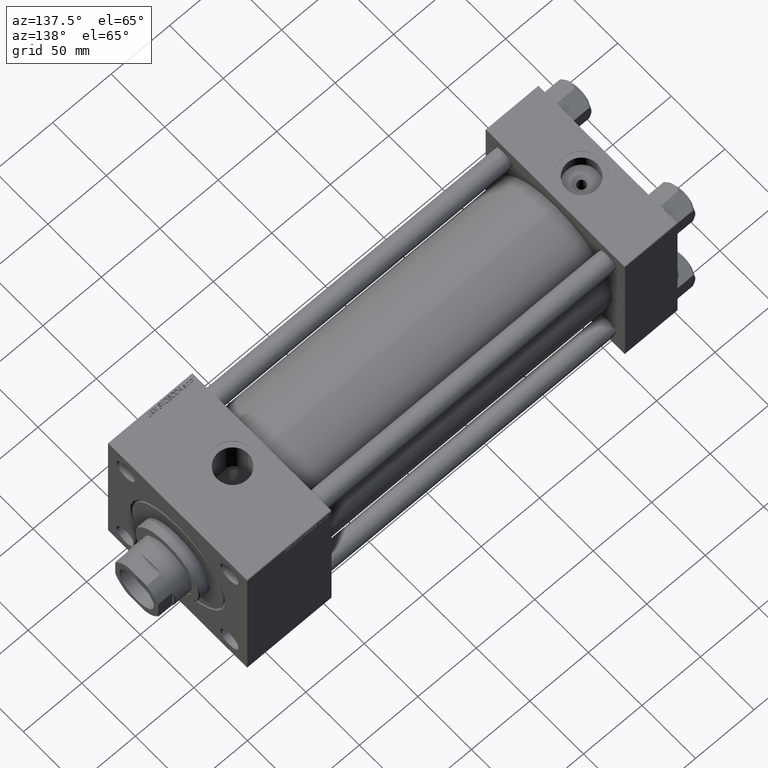
[diagram: clean part render]
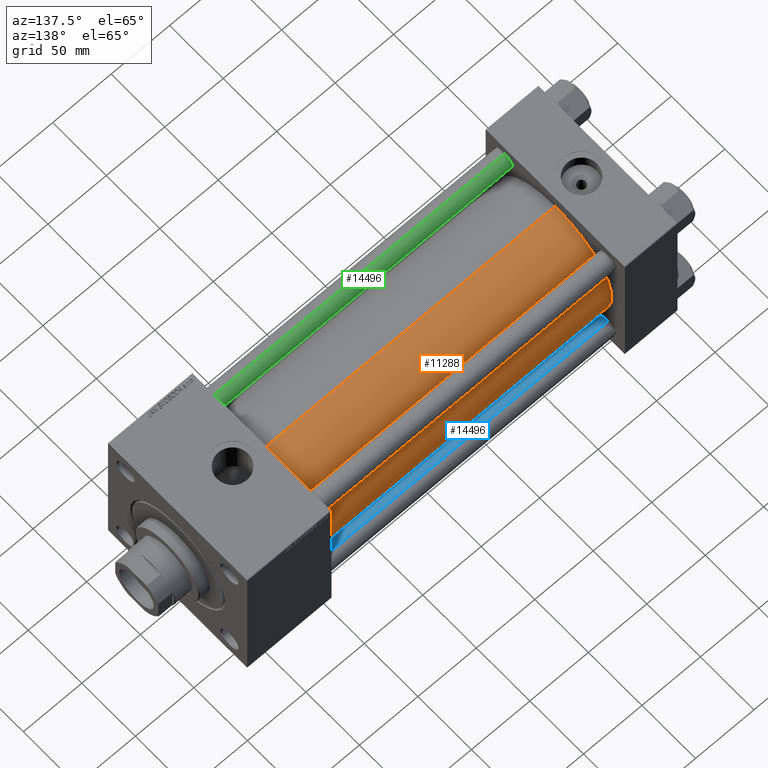
[diagram: same view with three faces highlighted in distinct colors, each labeled with its STEP entity id]
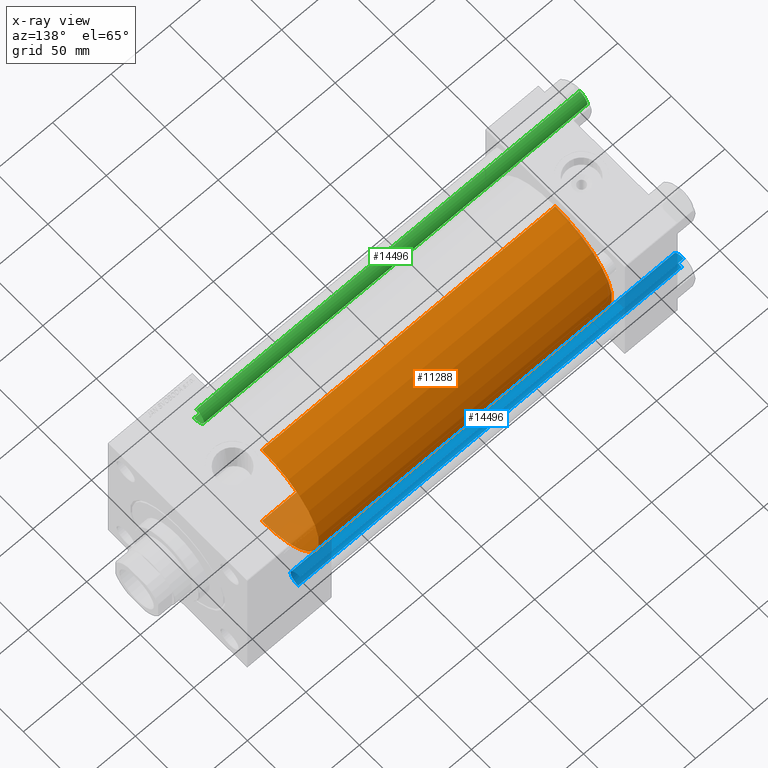
[diagram: x-ray of the same camera — body ghosted, the three highlighted faces saturated]
A machine part, auxiliary view with three faces highlighted in distinct colors.
The next image is the same camera in x-ray (body ghosted, the three faces saturated) — at least one of them is partly hidden behind the body in this view.
Their STEP definitions:

[orange] entity #11288 — the highlighted cylindrical surface (partial cylindrical patch) has radius 53 mm, axis along (-1, -0, -0).
#1529 = CIRCLE ( 'NONE', #45708, 53.00000000000000711 ) ;
#1586 = ORIENTED_EDGE ( 'NONE', *, *, #13727, .F. ) ;
#2878 = DIRECTION ( 'NONE',  ( 0.000000000000000000, 0.000000000000000000, 1.000000000000000000 ) ) ;
#3187 = ORIENTED_EDGE ( 'NONE', *, *, #44488, .T. ) ;
#5839 = CARTESIAN_POINT ( 'NONE',  ( 44.99999999999998579, -2.602085213965210642E-15, 0.000000000000000000 ) ) ;
#5963 = CARTESIAN_POINT ( 'NONE',  ( 296.0000000000000000, -2.602085213965210642E-15, 0.000000000000000000 ) ) ;
#6110 = DIRECTION ( 'NONE',  ( -1.000000000000000000, -0.000000000000000000, -0.000000000000000000 ) ) ;
#6143 = VERTEX_POINT ( 'NONE', #42360 ) ;
#8183 = AXIS2_PLACEMENT_3D ( 'NONE', #5839, #16865, #32497 ) ;
#9088 = CARTESIAN_POINT ( 'NONE',  ( 296.0000000000000000, -2.602085213965210642E-15, 0.000000000000000000 ) ) ;
#11288 = ADVANCED_FACE ( 'NONE', ( #14667 ), #45412, .T. ) ;
#13727 = EDGE_CURVE ( 'NONE', #6143, #29802, #29171, .T. ) ;
#14667 = FACE_OUTER_BOUND ( 'NONE', #21549, .T. ) ;
#14841 = EDGE_CURVE ( 'NONE', #36565, #15045, #33787, .T. ) ;
#15045 = VERTEX_POINT ( 'NONE', #22445 ) ;
#16865 = DIRECTION ( 'NONE',  ( 1.000000000000000000, -0.000000000000000000, 0.000000000000000000 ) ) ;
#17195 = CIRCLE ( 'NONE', #8183, 53.00000000000000711 ) ;
#19900 = VECTOR ( 'NONE', #29945, 1000.000000000000000 ) ;
#21549 = EDGE_LOOP ( 'NONE', ( #27391, #48514, #3187, #1586 ) ) ;
#22445 = CARTESIAN_POINT ( 'NONE',  ( 44.99999999999998579, 3.888542821515762466E-15, -53.00000000000000711 ) ) ;
#24906 = AXIS2_PLACEMENT_3D ( 'NONE', #5963, #48994, #2878 ) ;
#26587 = CARTESIAN_POINT ( 'NONE',  ( 296.0000000000000000, 3.888542821515762466E-15, -53.00000000000000711 ) ) ;
#27391 = ORIENTED_EDGE ( 'NONE', *, *, #32013, .F. ) ;
#29171 = LINE ( 'NONE', #48640, #44604 ) ;
#29802 = VERTEX_POINT ( 'NONE', #30726 ) ;
#29945 = DIRECTION ( 'NONE',  ( -1.000000000000000000, -0.000000000000000000, -0.000000000000000000 ) ) ;
#30726 = CARTESIAN_POINT ( 'NONE',  ( 44.99999999999998579, -2.602085213965210642E-15, 53.00000000000000711 ) ) ;
#32013 = EDGE_CURVE ( 'NONE', #36565, #6143, #1529, .T. ) ;
#32497 = DIRECTION ( 'NONE',  ( 0.000000000000000000, 0.000000000000000000, 1.000000000000000000 ) ) ;
#33787 = LINE ( 'NONE', #26587, #19900 ) ;
#35268 = CARTESIAN_POINT ( 'NONE',  ( 296.0000000000000000, 3.888542821515762466E-15, -53.00000000000000711 ) ) ;
#36565 = VERTEX_POINT ( 'NONE', #35268 ) ;
#40343 = DIRECTION ( 'NONE',  ( 1.000000000000000000, 0.000000000000000000, 0.000000000000000000 ) ) ;
#42360 = CARTESIAN_POINT ( 'NONE',  ( 296.0000000000000000, -2.602085213965210642E-15, 53.00000000000000711 ) ) ;
#44488 = EDGE_CURVE ( 'NONE', #15045, #29802, #17195, .T. ) ;
#44604 = VECTOR ( 'NONE', #6110, 1000.000000000000000 ) ;
#45412 = CYLINDRICAL_SURFACE ( 'NONE', #24906, 53.00000000000000711 ) ;
#45708 = AXIS2_PLACEMENT_3D ( 'NONE', #9088, #40343, #47518 ) ;
#47518 = DIRECTION ( 'NONE',  ( 0.000000000000000000, 0.000000000000000000, -1.000000000000000000 ) ) ;
#48514 = ORIENTED_EDGE ( 'NONE', *, *, #14841, .T. ) ;
#48640 = CARTESIAN_POINT ( 'NONE',  ( 296.0000000000000000, -2.602085213965210642E-15, 53.00000000000000711 ) ) ;
#48994 = DIRECTION ( 'NONE',  ( -1.000000000000000000, -0.000000000000000000, -0.000000000000000000 ) ) ;

[blue] entity #14496 — the highlighted cylindrical surface (edge-blend (fillet) strip) has radius 8 mm, axis along (1, -0, 0).
#5087 = DIRECTION ( 'NONE',  ( 1.000000000000000000, 0.000000000000000000, 0.000000000000000000 ) ) ;
#5956 = LINE ( 'NONE', #14160, #36041 ) ;
#7304 = AXIS2_PLACEMENT_3D ( 'NONE', #35829, #12779, #5087 ) ;
#7444 = VECTOR ( 'NONE', #16368, 1000.000000000000000 ) ;
#8930 = CARTESIAN_POINT ( 'NONE',  ( -8.000000000000000000, 0.000000000000000000, 329.0000000000000000 ) ) ;
#9748 = ORIENTED_EDGE ( 'NONE', *, *, #34423, .T. ) ;
#10873 = AXIS2_PLACEMENT_3D ( 'NONE', #14693, #42333, #34899 ) ;
#11016 = ORIENTED_EDGE ( 'NONE', *, *, #30398, .T. ) ;
#11764 = LINE ( 'NONE', #8930, #7444 ) ;
#12581 = DIRECTION ( 'NONE',  ( -0.000000000000000000, -0.000000000000000000, 1.000000000000000000 ) ) ;
#12779 = DIRECTION ( 'NONE',  ( 0.000000000000000000, 0.000000000000000000, -1.000000000000000000 ) ) ;
#14160 = CARTESIAN_POINT ( 'NONE',  ( 8.000000000000000000, 9.797174393178825657E-16, 329.0000000000000000 ) ) ;
#14496 = ADVANCED_FACE ( 'NONE', ( #33398 ), #18531, .T. ) ;
#14693 = CARTESIAN_POINT ( 'NONE',  ( 0.000000000000000000, 0.000000000000000000, 329.0000000000000000 ) ) ;
#14786 = ORIENTED_EDGE ( 'NONE', *, *, #42371, .T. ) ;
#16368 = DIRECTION ( 'NONE',  ( -0.000000000000000000, -0.000000000000000000, -1.000000000000000000 ) ) ;
#18531 = CYLINDRICAL_SURFACE ( 'NONE', #10873, 8.000000000000000000 ) ;
#20134 = EDGE_LOOP ( 'NONE', ( #28372, #9748, #14786, #11016 ) ) ;
#20258 = CIRCLE ( 'NONE', #36611, 8.000000000000000000 ) ;
#21722 = CARTESIAN_POINT ( 'NONE',  ( 8.000000000000000000, 9.797174393178825657E-16, 0.4999999999998894218 ) ) ;
#24490 = CIRCLE ( 'NONE', #7304, 8.000000000000000000 ) ;
#28372 = ORIENTED_EDGE ( 'NONE', *, *, #41280, .F. ) ;
#28922 = CARTESIAN_POINT ( 'NONE',  ( 8.000000000000000000, 9.797174393178825657E-16, 328.5000000000000000 ) ) ;
#30398 = EDGE_CURVE ( 'NONE', #49402, #34552, #20258, .T. ) ;
#31513 = VERTEX_POINT ( 'NONE', #28922 ) ;
#32687 = CARTESIAN_POINT ( 'NONE',  ( -8.000000000000000000, 0.000000000000000000, 328.5000000000000000 ) ) ;
#33398 = FACE_OUTER_BOUND ( 'NONE', #20134, .T. ) ;
#34423 = EDGE_CURVE ( 'NONE', #31513, #45241, #24490, .T. ) ;
#34552 = VERTEX_POINT ( 'NONE', #21722 ) ;
#34899 = DIRECTION ( 'NONE',  ( -1.000000000000000000, 0.000000000000000000, 0.000000000000000000 ) ) ;
#35829 = CARTESIAN_POINT ( 'NONE',  ( 0.000000000000000000, 0.000000000000000000, 328.5000000000000000 ) ) ;
#36041 = VECTOR ( 'NONE', #36959, 1000.000000000000000 ) ;
#36611 = AXIS2_PLACEMENT_3D ( 'NONE', #47678, #12581, #43823 ) ;
#36959 = DIRECTION ( 'NONE',  ( -0.000000000000000000, -0.000000000000000000, -1.000000000000000000 ) ) ;
#38124 = CARTESIAN_POINT ( 'NONE',  ( -8.000000000000000000, 0.000000000000000000, 0.4999999999998894218 ) ) ;
#41280 = EDGE_CURVE ( 'NONE', #31513, #34552, #5956, .T. ) ;
#42333 = DIRECTION ( 'NONE',  ( -0.000000000000000000, -0.000000000000000000, -1.000000000000000000 ) ) ;
#42371 = EDGE_CURVE ( 'NONE', #45241, #49402, #11764, .T. ) ;
#43823 = DIRECTION ( 'NONE',  ( 1.000000000000000000, 0.000000000000000000, 0.000000000000000000 ) ) ;
#45241 = VERTEX_POINT ( 'NONE', #32687 ) ;
#47678 = CARTESIAN_POINT ( 'NONE',  ( 0.000000000000000000, 0.000000000000000000, 0.4999999999998894218 ) ) ;
#49402 = VERTEX_POINT ( 'NONE', #38124 ) ;

[green] entity #14496 — the highlighted cylindrical surface (edge-blend (fillet) strip) has radius 8 mm, axis along (1, 0, -0).
#5087 = DIRECTION ( 'NONE',  ( 1.000000000000000000, 0.000000000000000000, 0.000000000000000000 ) ) ;
#5956 = LINE ( 'NONE', #14160, #36041 ) ;
#7304 = AXIS2_PLACEMENT_3D ( 'NONE', #35829, #12779, #5087 ) ;
#7444 = VECTOR ( 'NONE', #16368, 1000.000000000000000 ) ;
#8930 = CARTESIAN_POINT ( 'NONE',  ( -8.000000000000000000, 0.000000000000000000, 329.0000000000000000 ) ) ;
#9748 = ORIENTED_EDGE ( 'NONE', *, *, #34423, .T. ) ;
#10873 = AXIS2_PLACEMENT_3D ( 'NONE', #14693, #42333, #34899 ) ;
#11016 = ORIENTED_EDGE ( 'NONE', *, *, #30398, .T. ) ;
#11764 = LINE ( 'NONE', #8930, #7444 ) ;
#12581 = DIRECTION ( 'NONE',  ( -0.000000000000000000, -0.000000000000000000, 1.000000000000000000 ) ) ;
#12779 = DIRECTION ( 'NONE',  ( 0.000000000000000000, 0.000000000000000000, -1.000000000000000000 ) ) ;
#14160 = CARTESIAN_POINT ( 'NONE',  ( 8.000000000000000000, 9.797174393178825657E-16, 329.0000000000000000 ) ) ;
#14496 = ADVANCED_FACE ( 'NONE', ( #33398 ), #18531, .T. ) ;
#14693 = CARTESIAN_POINT ( 'NONE',  ( 0.000000000000000000, 0.000000000000000000, 329.0000000000000000 ) ) ;
#14786 = ORIENTED_EDGE ( 'NONE', *, *, #42371, .T. ) ;
#16368 = DIRECTION ( 'NONE',  ( -0.000000000000000000, -0.000000000000000000, -1.000000000000000000 ) ) ;
#18531 = CYLINDRICAL_SURFACE ( 'NONE', #10873, 8.000000000000000000 ) ;
#20134 = EDGE_LOOP ( 'NONE', ( #28372, #9748, #14786, #11016 ) ) ;
#20258 = CIRCLE ( 'NONE', #36611, 8.000000000000000000 ) ;
#21722 = CARTESIAN_POINT ( 'NONE',  ( 8.000000000000000000, 9.797174393178825657E-16, 0.4999999999998894218 ) ) ;
#24490 = CIRCLE ( 'NONE', #7304, 8.000000000000000000 ) ;
#28372 = ORIENTED_EDGE ( 'NONE', *, *, #41280, .F. ) ;
#28922 = CARTESIAN_POINT ( 'NONE',  ( 8.000000000000000000, 9.797174393178825657E-16, 328.5000000000000000 ) ) ;
#30398 = EDGE_CURVE ( 'NONE', #49402, #34552, #20258, .T. ) ;
#31513 = VERTEX_POINT ( 'NONE', #28922 ) ;
#32687 = CARTESIAN_POINT ( 'NONE',  ( -8.000000000000000000, 0.000000000000000000, 328.5000000000000000 ) ) ;
#33398 = FACE_OUTER_BOUND ( 'NONE', #20134, .T. ) ;
#34423 = EDGE_CURVE ( 'NONE', #31513, #45241, #24490, .T. ) ;
#34552 = VERTEX_POINT ( 'NONE', #21722 ) ;
#34899 = DIRECTION ( 'NONE',  ( -1.000000000000000000, 0.000000000000000000, 0.000000000000000000 ) ) ;
#35829 = CARTESIAN_POINT ( 'NONE',  ( 0.000000000000000000, 0.000000000000000000, 328.5000000000000000 ) ) ;
#36041 = VECTOR ( 'NONE', #36959, 1000.000000000000000 ) ;
#36611 = AXIS2_PLACEMENT_3D ( 'NONE', #47678, #12581, #43823 ) ;
#36959 = DIRECTION ( 'NONE',  ( -0.000000000000000000, -0.000000000000000000, -1.000000000000000000 ) ) ;
#38124 = CARTESIAN_POINT ( 'NONE',  ( -8.000000000000000000, 0.000000000000000000, 0.4999999999998894218 ) ) ;
#41280 = EDGE_CURVE ( 'NONE', #31513, #34552, #5956, .T. ) ;
#42333 = DIRECTION ( 'NONE',  ( -0.000000000000000000, -0.000000000000000000, -1.000000000000000000 ) ) ;
#42371 = EDGE_CURVE ( 'NONE', #45241, #49402, #11764, .T. ) ;
#43823 = DIRECTION ( 'NONE',  ( 1.000000000000000000, 0.000000000000000000, 0.000000000000000000 ) ) ;
#45241 = VERTEX_POINT ( 'NONE', #32687 ) ;
#47678 = CARTESIAN_POINT ( 'NONE',  ( 0.000000000000000000, 0.000000000000000000, 0.4999999999998894218 ) ) ;
#49402 = VERTEX_POINT ( 'NONE', #38124 ) ;